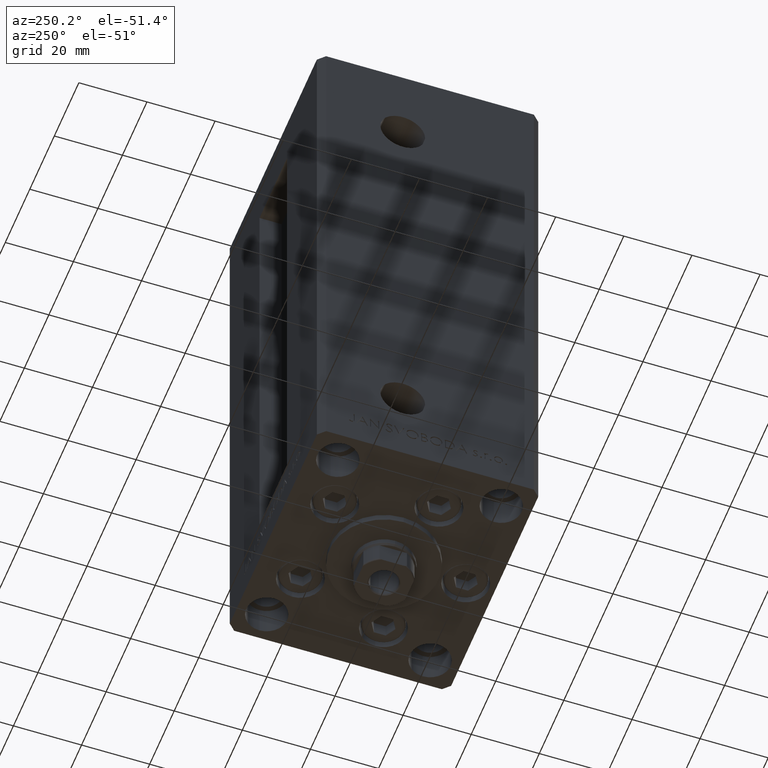
[diagram: clean part render]
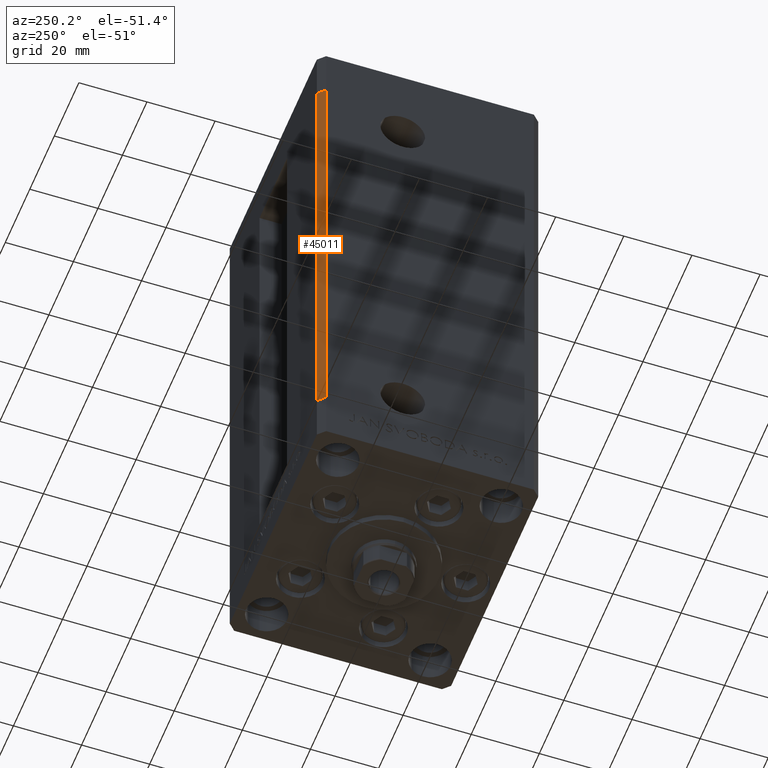
[diagram: same view with one face highlighted and labeled with its STEP entity id]
A machine part, auxiliary view. The second image highlights one B-rep face of the part: STEP entity #45011.
In plain terms, the highlighted planar face has unit normal (0.7071, -0.7071, 0).
Its self-contained STEP definition (entity closure, byte-faithful):
#130 = LINE ( 'NONE', #18243, #1524 ) ;
#371 = DIRECTION ( 'NONE',  ( 0.7071067811865451302, -0.7071067811865500152, 0.000000000000000000 ) ) ;
#1524 = VECTOR ( 'NONE', #46091, 1000.000000000000000 ) ;
#3525 = ORIENTED_EDGE ( 'NONE', *, *, #35246, .T. ) ;
#4024 = ORIENTED_EDGE ( 'NONE', *, *, #26675, .F. ) ;
#4644 = LINE ( 'NONE', #43291, #27717 ) ;
#4888 = DIRECTION ( 'NONE',  ( 0.7071067811865500152, 0.7071067811865451302, 0.000000000000000000 ) ) ;
#4933 = CARTESIAN_POINT ( 'NONE',  ( -37.50000000000000711, 30.50000000000000000, 136.0000000000000000 ) ) ;
#5186 = VERTEX_POINT ( 'NONE', #4933 ) ;
#8662 = FACE_OUTER_BOUND ( 'NONE', #30710, .T. ) ;
#9951 = ORIENTED_EDGE ( 'NONE', *, *, #15092, .F. ) ;
#9983 = LINE ( 'NONE', #25290, #39932 ) ;
#10228 = DIRECTION ( 'NONE',  ( -0.7071067811865500152, -0.7071067811865451302, 0.000000000000000000 ) ) ;
#11491 = LINE ( 'NONE', #11980, #43507 ) ;
#11980 = CARTESIAN_POINT ( 'NONE',  ( -35.50000000000000000, 32.49999999999999289, 136.0000000000000000 ) ) ;
#15092 = EDGE_CURVE ( 'NONE', #31923, #5186, #4644, .T. ) ;
#18243 = CARTESIAN_POINT ( 'NONE',  ( -37.50000000000000711, 30.50000000000000000, 136.0000000000000000 ) ) ;
#19198 = CARTESIAN_POINT ( 'NONE',  ( -35.50000000000000000, 32.49999999999999289, 136.0000000000000000 ) ) ;
#24196 = AXIS2_PLACEMENT_3D ( 'NONE', #46571, #371, #4888 ) ;
#25290 = CARTESIAN_POINT ( 'NONE',  ( -35.50000000000000000, 32.49999999999999289, 0.000000000000000000 ) ) ;
#26675 = EDGE_CURVE ( 'NONE', #5186, #38858, #130, .T. ) ;
#27296 = DIRECTION ( 'NONE',  ( -0.000000000000000000, -0.000000000000000000, -1.000000000000000000 ) ) ;
#27717 = VECTOR ( 'NONE', #35521, 1000.000000000000114 ) ;
#30710 = EDGE_LOOP ( 'NONE', ( #3525, #4024, #9951, #36424 ) ) ;
#31554 = VERTEX_POINT ( 'NONE', #47340 ) ;
#31923 = VERTEX_POINT ( 'NONE', #19198 ) ;
#35246 = EDGE_CURVE ( 'NONE', #31554, #38858, #9983, .T. ) ;
#35268 = PLANE ( 'NONE',  #24196 ) ;
#35521 = DIRECTION ( 'NONE',  ( -0.7071067811865500152, -0.7071067811865451302, 0.000000000000000000 ) ) ;
#36424 = ORIENTED_EDGE ( 'NONE', *, *, #46715, .T. ) ;
#37437 = CARTESIAN_POINT ( 'NONE',  ( -37.50000000000000711, 30.50000000000000000, 0.000000000000000000 ) ) ;
#38858 = VERTEX_POINT ( 'NONE', #37437 ) ;
#39932 = VECTOR ( 'NONE', #10228, 1000.000000000000114 ) ;
#43291 = CARTESIAN_POINT ( 'NONE',  ( -35.50000000000000000, 32.49999999999999289, 136.0000000000000000 ) ) ;
#43507 = VECTOR ( 'NONE', #27296, 1000.000000000000000 ) ;
#45011 = ADVANCED_FACE ( 'NONE', ( #8662 ), #35268, .F. ) ;
#46091 = DIRECTION ( 'NONE',  ( -0.000000000000000000, -0.000000000000000000, -1.000000000000000000 ) ) ;
#46571 = CARTESIAN_POINT ( 'NONE',  ( -35.50000000000000000, 32.49999999999999289, 136.0000000000000000 ) ) ;
#46715 = EDGE_CURVE ( 'NONE', #31923, #31554, #11491, .T. ) ;
#47340 = CARTESIAN_POINT ( 'NONE',  ( -35.50000000000000000, 32.49999999999999289, 0.000000000000000000 ) ) ;